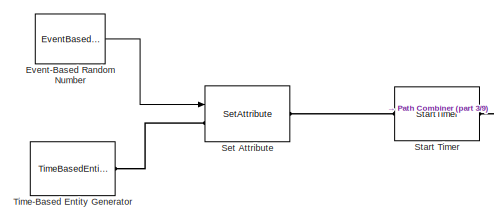
[diagram: root canvas - part 1/9, top left region]
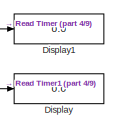
[diagram: root canvas - part 2/9, top right region]
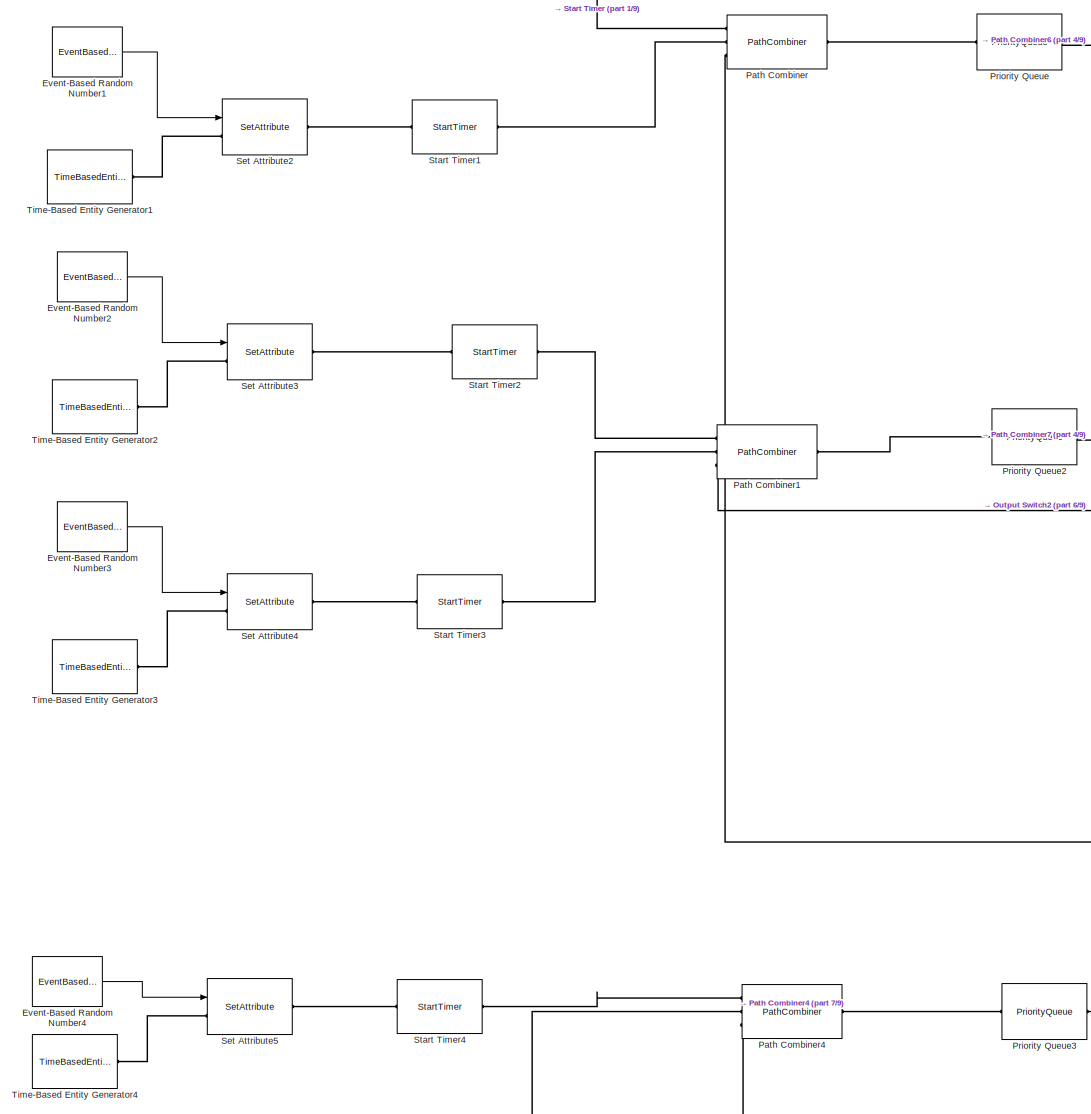
[diagram: root canvas - part 3/9, middle left region]
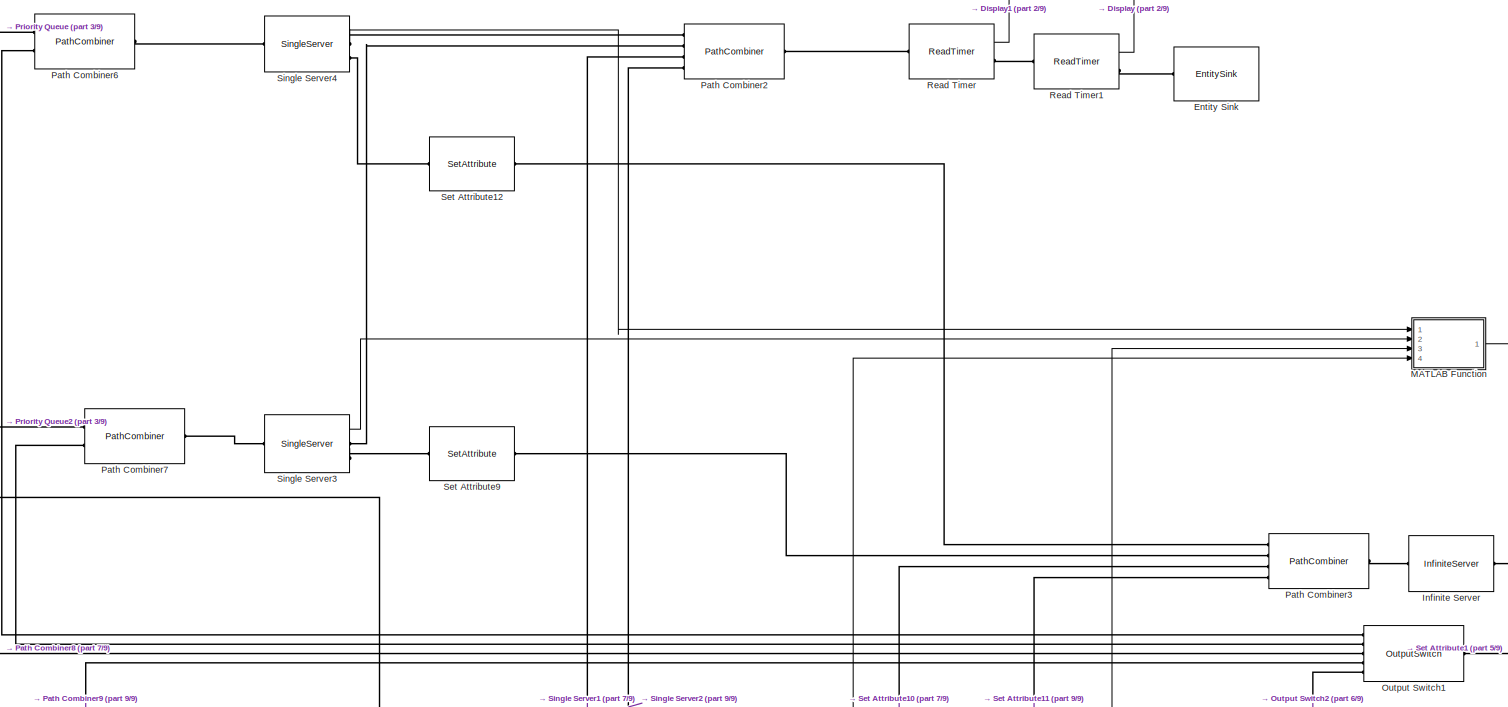
[diagram: root canvas - part 4/9, top right region]
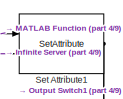
[diagram: root canvas - part 5/9, top right region]
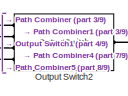
[diagram: root canvas - part 6/9, middle right region]
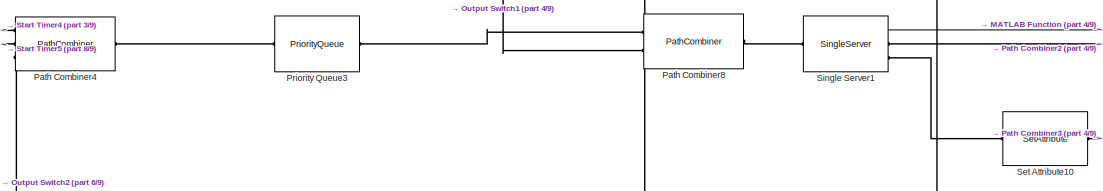
[diagram: root canvas - part 7/9, central region]
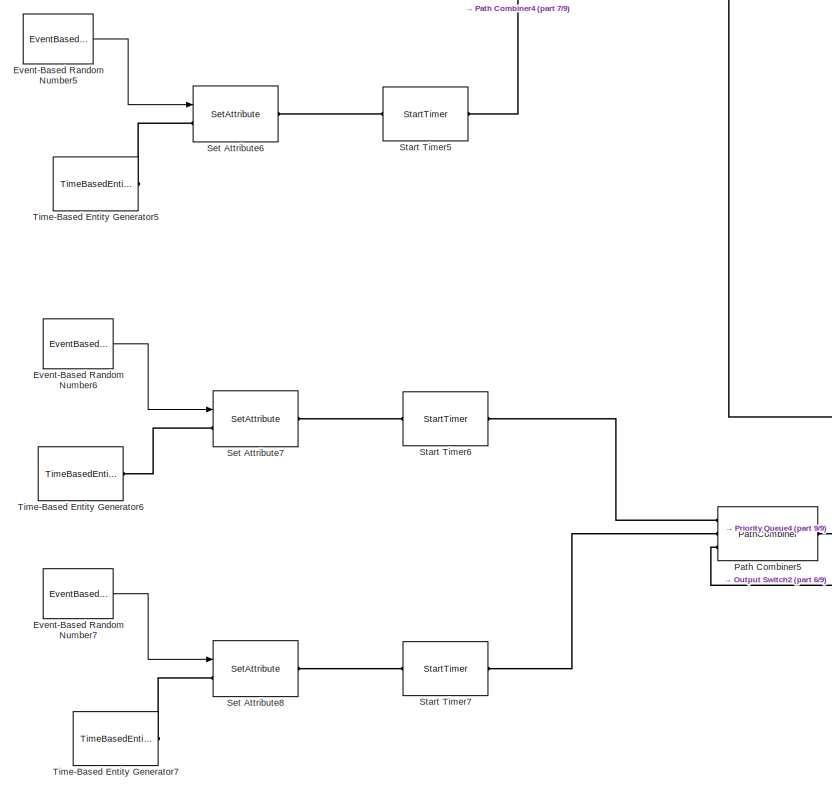
[diagram: root canvas - part 8/9, bottom left region]
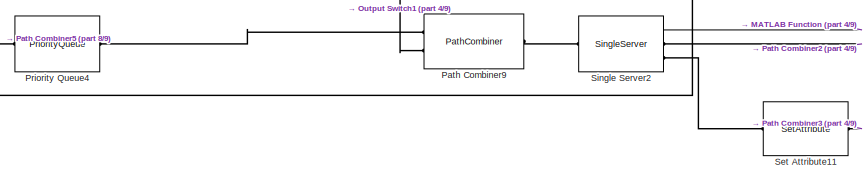
[diagram: root canvas - part 9/9, bottom center region]
MODEL slx_85162bb1e3ab
KIND model
BLOCK [Display] Display
  Decimation = 1
  Ports = [1]
BLOCK [Display] Display1
  Decimation = 1
  Ports = [1]
BLOCK [EntitySink] Entity Sink
  Ports = [0, 0, 0, 0, 0, 1]
BLOCK [EventBasedRandomNumber] Event-Based Random Number
  OutputPortMap = o0
  Ports = [0, 1]
  Seed = 40859
  meanExp = 1/180
BLOCK [EventBasedRandomNumber] Event-Based Random Number1
  OutputPortMap = o0
  Ports = [0, 1]
  Seed = 94546
  meanExp = 1/180
BLOCK [EventBasedRandomNumber] Event-Based Random Number2
  OutputPortMap = o0
  Ports = [0, 1]
  Seed = 3
  meanExp = 1/180
BLOCK [EventBasedRandomNumber] Event-Based Random Number3
  OutputPortMap = o0
  Ports = [0, 1]
  Seed = 4
  meanExp = 1/180
BLOCK [EventBasedRandomNumber] Event-Based Random Number4
  OutputPortMap = o0
  Ports = [0, 1]
  Seed = 44076
  meanExp = 1/180
BLOCK [EventBasedRandomNumber] Event-Based Random Number5
  OutputPortMap = o0
  Ports = [0, 1]
  Seed = 5
  meanExp = 1/180
BLOCK [EventBasedRandomNumber] Event-Based Random Number6
  OutputPortMap = o0
  Ports = [0, 1]
  Seed = 6
  meanExp = 1/180
BLOCK [EventBasedRandomNumber] Event-Based Random Number7
  OutputPortMap = o0
  Ports = [0, 1]
  Seed = 7
  meanExp = 1/180
BLOCK [InfiniteServer] Infinite Server
  Ports = [0, 0, 0, 0, 0, 1, 1]
  ServiceTime = 0
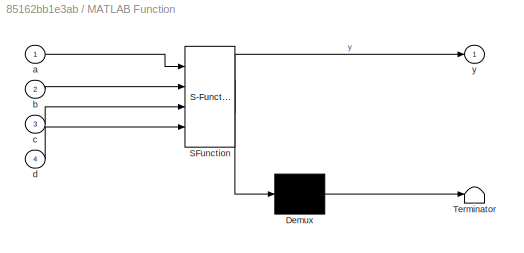
BLOCK [SubSystem] MATLAB Function
  ErrorFcn = Stateflow.Translate.translate
  PermitHierarchicalResolution = ExplicitOnly
  Ports = [4, 1]
  RTWSystemCode = Inline
  RequestExecContextInheritance = off
  SFBlockType = MATLAB Function
  TreatAsAtomicUnit = on
BLOCK [Demux] MATLAB Function/ Demux 
  Outputs = 1
  Ports = [1, 1]
BLOCK [S-Function] MATLAB Function/ SFunction 
  EnableBusSupport = on
  FunctionName = sf_sfun
  PortCounts = [4 2]
  Ports = [4, 2]
  Tag = Stateflow S-Function Bomb 2
BLOCK [Terminator] MATLAB Function/ Terminator 
BLOCK [Inport] MATLAB Function/a
  IconDisplay = Port number
BLOCK [Inport] MATLAB Function/b
  IconDisplay = Port number
  Port = 2
BLOCK [Inport] MATLAB Function/c
  IconDisplay = Port number
  Port = 3
BLOCK [Inport] MATLAB Function/d
  IconDisplay = Port number
  Port = 4
BLOCK [Outport] MATLAB Function/y
  IconDisplay = Port number
BLOCK [OutputSwitch] Output Switch1
  AttributeName = route
  NumberOutputPorts = 5
  Ports = [0, 0, 0, 0, 0, 1, 5]
  SwitchingCriterion = From attribute
BLOCK [OutputSwitch] Output Switch2
  AttributeName = ch
  NumberOutputPorts = 4
  Ports = [0, 0, 0, 0, 0, 1, 4]
  SwitchingCriterion = From attribute
BLOCK [PathCombiner] Path Combiner
  Ports = [0, 0, 0, 0, 0, 3, 1]
BLOCK [PathCombiner] Path Combiner1
  Ports = [0, 0, 0, 0, 0, 3, 1]
BLOCK [PathCombiner] Path Combiner2
  NumberInputPorts = 4
  Ports = [0, 0, 0, 0, 0, 4, 1]
BLOCK [PathCombiner] Path Combiner3
  NumberInputPorts = 4
  Ports = [0, 0, 0, 0, 0, 4, 1]
BLOCK [PathCombiner] Path Combiner4
  Ports = [0, 0, 0, 0, 0, 3, 1]
BLOCK [PathCombiner] Path Combiner5
  Ports = [0, 0, 0, 0, 0, 3, 1]
BLOCK [PathCombiner] Path Combiner6
  NumberInputPorts = 2
  Ports = [0, 0, 0, 0, 0, 2, 1]
BLOCK [PathCombiner] Path Combiner7
  NumberInputPorts = 2
  Ports = [0, 0, 0, 0, 0, 2, 1]
BLOCK [PathCombiner] Path Combiner8
  NumberInputPorts = 2
  Ports = [0, 0, 0, 0, 0, 2, 1]
BLOCK [PathCombiner] Path Combiner9
  NumberInputPorts = 2
  Ports = [0, 0, 0, 0, 0, 2, 1]
BLOCK [PriorityQueue] Priority Queue
  Capacity = inf
  Ports = [0, 0, 0, 0, 0, 1, 1]
  SortingAttributeName = priority
BLOCK [PriorityQueue] Priority Queue2
  Capacity = inf
  Ports = [0, 0, 0, 0, 0, 1, 1]
  SortingAttributeName = priority
BLOCK [PriorityQueue] Priority Queue3
  Capacity = inf
  Ports = [0, 0, 0, 0, 0, 1, 1]
  SortingAttributeName = priority
BLOCK [PriorityQueue] Priority Queue4
  Capacity = inf
  Ports = [0, 0, 0, 0, 0, 1, 1]
  SortingAttributeName = priority
BLOCK [ReadTimer] Read Timer
  OutputPortMap = o3
  Ports = [0, 1, 0, 0, 0, 1, 1]
  StatAverageTimeElapsed = on
  TimerModeOption = Ignore
  TimerTag = TP
BLOCK [ReadTimer] Read Timer1
  OutputPortMap = o3
  Ports = [0, 1, 0, 0, 0, 1, 1]
  StatAverageTimeElapsed = on
  TimerModeOption = Ignore
  TimerTag = TS
BLOCK [SetAttribute] Set Attribute
  AttributeFrom = Signal port|Dialog
  AttributeName = ServTime|priority
  AttributeTreatAsVector = 1|1
  AttributeValue = 1|1
  EvaluatedAttributeValue = { [];1}
  InputPortMap = u0
  Ports = [1, 0, 0, 0, 0, 1, 1]
BLOCK [SetAttribute] Set Attribute1
  AttributeFrom = Signal port
  AttributeName = route
  EvaluatedAttributeValue = { []}
  InputPortMap = u0
  Ports = [1, 0, 0, 0, 0, 1, 1]
BLOCK [SetAttribute] Set Attribute10
  AttributeFrom = Dialog|Dialog
  AttributeName = ch|priority
  AttributeTreatAsVector = 1|1
  AttributeValue = 3|2
  EvaluatedAttributeValue = { 3;2}
  Ports = [0, 0, 0, 0, 0, 1, 1]
BLOCK [SetAttribute] Set Attribute11
  AttributeFrom = Dialog|Dialog
  AttributeName = ch|priority
  AttributeTreatAsVector = 1|1
  AttributeValue = 4|2
  EvaluatedAttributeValue = { 4;2}
  Ports = [0, 0, 0, 0, 0, 1, 1]
BLOCK [SetAttribute] Set Attribute12
  AttributeFrom = Dialog|Dialog
  AttributeName = ch|priority
  AttributeTreatAsVector = 1|1
  AttributeValue = 1|2
  EvaluatedAttributeValue = { 1;2}
  Ports = [0, 0, 0, 0, 0, 1, 1]
BLOCK [SetAttribute] Set Attribute2
  AttributeFrom = Signal port|Dialog
  AttributeName = ServTime|priority
  AttributeTreatAsVector = 1|1
  AttributeValue = 1|3
  EvaluatedAttributeValue = { [];3}
  InputPortMap = u0
  Ports = [1, 0, 0, 0, 0, 1, 1]
BLOCK [SetAttribute] Set Attribute3
  AttributeFrom = Signal port|Dialog
  AttributeName = ServTime|priority
  AttributeTreatAsVector = 1|1
  AttributeValue = 1|1
  EvaluatedAttributeValue = { [];1}
  InputPortMap = u0
  Ports = [1, 0, 0, 0, 0, 1, 1]
BLOCK [SetAttribute] Set Attribute4
  AttributeFrom = Signal port|Dialog
  AttributeName = ServTime|priority
  AttributeTreatAsVector = 1|1
  AttributeValue = 1|3
  EvaluatedAttributeValue = { [];3}
  InputPortMap = u0
  Ports = [1, 0, 0, 0, 0, 1, 1]
BLOCK [SetAttribute] Set Attribute5
  AttributeFrom = Signal port|Dialog
  AttributeName = ServTime|priority
  AttributeTreatAsVector = 1|1
  AttributeValue = 1|1
  EvaluatedAttributeValue = { [];1}
  InputPortMap = u0
  Ports = [1, 0, 0, 0, 0, 1, 1]
BLOCK [SetAttribute] Set Attribute6
  AttributeFrom = Signal port|Dialog
  AttributeName = ServTime|priority
  AttributeTreatAsVector = 1|1
  AttributeValue = 1|3
  EvaluatedAttributeValue = { [];3}
  InputPortMap = u0
  Ports = [1, 0, 0, 0, 0, 1, 1]
BLOCK [SetAttribute] Set Attribute7
  AttributeFrom = Signal port|Dialog
  AttributeName = ServTime|priority
  AttributeTreatAsVector = 1|1
  AttributeValue = 1|1
  EvaluatedAttributeValue = { [];1}
  InputPortMap = u0
  Ports = [1, 0, 0, 0, 0, 1, 1]
BLOCK [SetAttribute] Set Attribute8
  AttributeFrom = Signal port|Dialog
  AttributeName = ServTime|priority
  AttributeTreatAsVector = 1|1
  AttributeValue = 1|3
  EvaluatedAttributeValue = { [];3}
  InputPortMap = u0
  Ports = [1, 0, 0, 0, 0, 1, 1]
BLOCK [SetAttribute] Set Attribute9
  AttributeFrom = Dialog|Dialog
  AttributeName = ch|priority
  AttributeTreatAsVector = 1|1
  AttributeValue = 2|2
  EvaluatedAttributeValue = { 2;2}
  Ports = [0, 0, 0, 0, 0, 1, 1]
BLOCK [SingleServer] Single Server1
  AttributeName = ServTime
  OutputPortMap = o1
  PermitPreemption = on
  Ports = [0, 1, 0, 0, 0, 1, 2]
  ResidualAttributeName = ServTime
  ServiceTime = 0
  ServiceTimeFrom = Attribute
  SortingAttributeName = priority
  StatNumberInBlock = on
  WriteToAttribute = on
BLOCK [SingleServer] Single Server2
  AttributeName = ServTime
  OutputPortMap = o1
  PermitPreemption = on
  Ports = [0, 1, 0, 0, 0, 1, 2]
  ResidualAttributeName = ServTime
  ServiceTime = 0
  ServiceTimeFrom = Attribute
  SortingAttributeName = priority
  StatNumberInBlock = on
  WriteToAttribute = on
BLOCK [SingleServer] Single Server3
  AttributeName = ServTime
  OutputPortMap = o1
  PermitPreemption = on
  Ports = [0, 1, 0, 0, 0, 1, 2]
  ResidualAttributeName = ServTime
  ServiceTime = 0
  ServiceTimeFrom = Attribute
  SortingAttributeName = priority
  StatNumberInBlock = on
  WriteToAttribute = on
BLOCK [SingleServer] Single Server4
  AttributeName = ServTime
  OutputPortMap = o1
  PermitPreemption = on
  Ports = [0, 1, 0, 0, 0, 1, 2]
  ResidualAttributeName = ServTime
  ServiceTime = 0
  ServiceTimeFrom = Attribute
  SortingAttributeName = priority
  StatNumberInBlock = on
  WriteToAttribute = on
BLOCK [StartTimer] Start Timer
  Ports = [0, 0, 0, 0, 0, 1, 1]
  TimerStartedOption = Continue
  TimerTag = TP
BLOCK [StartTimer] Start Timer1
  Ports = [0, 0, 0, 0, 0, 1, 1]
  TimerStartedOption = Continue
  TimerTag = TS
BLOCK [StartTimer] Start Timer2
  Ports = [0, 0, 0, 0, 0, 1, 1]
  TimerStartedOption = Continue
  TimerTag = TP
BLOCK [StartTimer] Start Timer3
  Ports = [0, 0, 0, 0, 0, 1, 1]
  TimerStartedOption = Continue
  TimerTag = TS
BLOCK [StartTimer] Start Timer4
  Ports = [0, 0, 0, 0, 0, 1, 1]
  TimerStartedOption = Continue
  TimerTag = TP
BLOCK [StartTimer] Start Timer5
  Ports = [0, 0, 0, 0, 0, 1, 1]
  TimerStartedOption = Continue
  TimerTag = TS
BLOCK [StartTimer] Start Timer6
  Ports = [0, 0, 0, 0, 0, 1, 1]
  TimerStartedOption = Continue
  TimerTag = TP
BLOCK [StartTimer] Start Timer7
  Ports = [0, 0, 0, 0, 0, 1, 1]
  TimerStartedOption = Continue
  TimerTag = TS
BLOCK [TimeBasedEntityGenerator] Time-Based Entity Generator
  Distribution = Exponential
  InitialSeed = 11
  Ports = [0, 0, 0, 0, 0, 0, 1]
BLOCK [TimeBasedEntityGenerator] Time-Based Entity Generator1
  Distribution = Exponential
  InitialSeed = 12
  Ports = [0, 0, 0, 0, 0, 0, 1]
BLOCK [TimeBasedEntityGenerator] Time-Based Entity Generator2
  Distribution = Exponential
  InitialSeed = 13
  Ports = [0, 0, 0, 0, 0, 0, 1]
BLOCK [TimeBasedEntityGenerator] Time-Based Entity Generator3
  Distribution = Exponential
  InitialSeed = 14
  Ports = [0, 0, 0, 0, 0, 0, 1]
BLOCK [TimeBasedEntityGenerator] Time-Based Entity Generator4
  Distribution = Exponential
  InitialSeed = 15
  Ports = [0, 0, 0, 0, 0, 0, 1]
BLOCK [TimeBasedEntityGenerator] Time-Based Entity Generator5
  Distribution = Exponential
  InitialSeed = 16
  Ports = [0, 0, 0, 0, 0, 0, 1]
BLOCK [TimeBasedEntityGenerator] Time-Based Entity Generator6
  Distribution = Exponential
  InitialSeed = 17
  Ports = [0, 0, 0, 0, 0, 0, 1]
BLOCK [TimeBasedEntityGenerator] Time-Based Entity Generator7
  Distribution = Exponential
  InitialSeed = 18
  Ports = [0, 0, 0, 0, 0, 0, 1]
LINE Event-Based Random Number1:1 -> Set Attribute2:1
LINE Event-Based Random Number2:1 -> Set Attribute3:1
LINE Event-Based Random Number3:1 -> Set Attribute4:1
LINE Event-Based Random Number4:1 -> Set Attribute5:1
LINE Event-Based Random Number5:1 -> Set Attribute6:1
LINE Event-Based Random Number6:1 -> Set Attribute7:1
LINE Event-Based Random Number7:1 -> Set Attribute8:1
LINE Event-Based Random Number:1 -> Set Attribute:1
LINE MATLAB Function:1 -> Set Attribute1:1
LINE Read Timer1:1 -> Display:1
LINE Read Timer:1 -> Display1:1
LINE Single Server1:1 -> MATLAB Function:3
LINE Single Server2:1 -> MATLAB Function:4
LINE Single Server3:1 -> MATLAB Function:2
LINE Single Server4:1 -> MATLAB Function:1
PLINE Entity Sink:LConn1 -- Read Timer1:RConn1
PLINE Infinite Server:LConn1 -- Path Combiner3:RConn1
PLINE Infinite Server:RConn1 -- Set Attribute1:LConn1
PLINE Output Switch1:LConn1 -- Set Attribute1:RConn1
PLINE Output Switch1:RConn1 -- Path Combiner6:LConn2
PLINE Output Switch1:RConn2 -- Path Combiner7:LConn2
PLINE Output Switch1:RConn3 -- Path Combiner8:LConn2
PLINE Output Switch1:RConn4 -- Path Combiner9:LConn2
PLINE Output Switch1:RConn5 -- Output Switch2:LConn1
PLINE Output Switch2:RConn1 -- Path Combiner:LConn3
PLINE Output Switch2:RConn2 -- Path Combiner1:LConn3
PLINE Output Switch2:RConn3 -- Path Combiner4:LConn3
PLINE Output Switch2:RConn4 -- Path Combiner5:LConn3
PLINE Path Combiner1:LConn1 -- Start Timer2:RConn1
PLINE Path Combiner1:LConn2 -- Start Timer3:RConn1
PLINE Path Combiner1:RConn1 -- Priority Queue2:LConn1
PLINE Path Combiner2:LConn1 -- Single Server4:RConn1
PLINE Path Combiner2:LConn2 -- Single Server3:RConn1
PLINE Path Combiner2:LConn3 -- Single Server1:RConn1
PLINE Path Combiner2:LConn4 -- Single Server2:RConn1
PLINE Path Combiner2:RConn1 -- Read Timer:LConn1
PLINE Path Combiner3:LConn1 -- Set Attribute12:RConn1
PLINE Path Combiner3:LConn2 -- Set Attribute9:RConn1
PLINE Path Combiner3:LConn3 -- Set Attribute10:RConn1
PLINE Path Combiner3:LConn4 -- Set Attribute11:RConn1
PLINE Path Combiner4:LConn1 -- Start Timer4:RConn1
PLINE Path Combiner4:LConn2 -- Start Timer5:RConn1
PLINE Path Combiner4:RConn1 -- Priority Queue3:LConn1
PLINE Path Combiner5:LConn1 -- Start Timer6:RConn1
PLINE Path Combiner5:LConn2 -- Start Timer7:RConn1
PLINE Path Combiner5:RConn1 -- Priority Queue4:LConn1
PLINE Path Combiner6:LConn1 -- Priority Queue:RConn1
PLINE Path Combiner6:RConn1 -- Single Server4:LConn1
PLINE Path Combiner7:LConn1 -- Priority Queue2:RConn1
PLINE Path Combiner7:RConn1 -- Single Server3:LConn1
PLINE Path Combiner8:LConn1 -- Priority Queue3:RConn1
PLINE Path Combiner8:RConn1 -- Single Server1:LConn1
PLINE Path Combiner9:LConn1 -- Priority Queue4:RConn1
PLINE Path Combiner9:RConn1 -- Single Server2:LConn1
PLINE Path Combiner:LConn1 -- Start Timer:RConn1
PLINE Path Combiner:LConn2 -- Start Timer1:RConn1
PLINE Path Combiner:RConn1 -- Priority Queue:LConn1
PLINE Read Timer1:LConn1 -- Read Timer:RConn1
PLINE Set Attribute10:LConn1 -- Single Server1:RConn2
PLINE Set Attribute11:LConn1 -- Single Server2:RConn2
PLINE Set Attribute12:LConn1 -- Single Server4:RConn2
PLINE Set Attribute2:LConn1 -- Time-Based Entity Generator1:RConn1
PLINE Set Attribute2:RConn1 -- Start Timer1:LConn1
PLINE Set Attribute3:LConn1 -- Time-Based Entity Generator2:RConn1
PLINE Set Attribute3:RConn1 -- Start Timer2:LConn1
PLINE Set Attribute4:LConn1 -- Time-Based Entity Generator3:RConn1
PLINE Set Attribute4:RConn1 -- Start Timer3:LConn1
PLINE Set Attribute5:LConn1 -- Time-Based Entity Generator4:RConn1
PLINE Set Attribute5:RConn1 -- Start Timer4:LConn1
PLINE Set Attribute6:LConn1 -- Time-Based Entity Generator5:RConn1
PLINE Set Attribute6:RConn1 -- Start Timer5:LConn1
PLINE Set Attribute7:LConn1 -- Time-Based Entity Generator6:RConn1
PLINE Set Attribute7:RConn1 -- Start Timer6:LConn1
PLINE Set Attribute8:LConn1 -- Time-Based Entity Generator7:RConn1
PLINE Set Attribute8:RConn1 -- Start Timer7:LConn1
PLINE Set Attribute9:LConn1 -- Single Server3:RConn2
PLINE Set Attribute:LConn1 -- Time-Based Entity Generator:RConn1
PLINE Set Attribute:RConn1 -- Start Timer:LConn1
